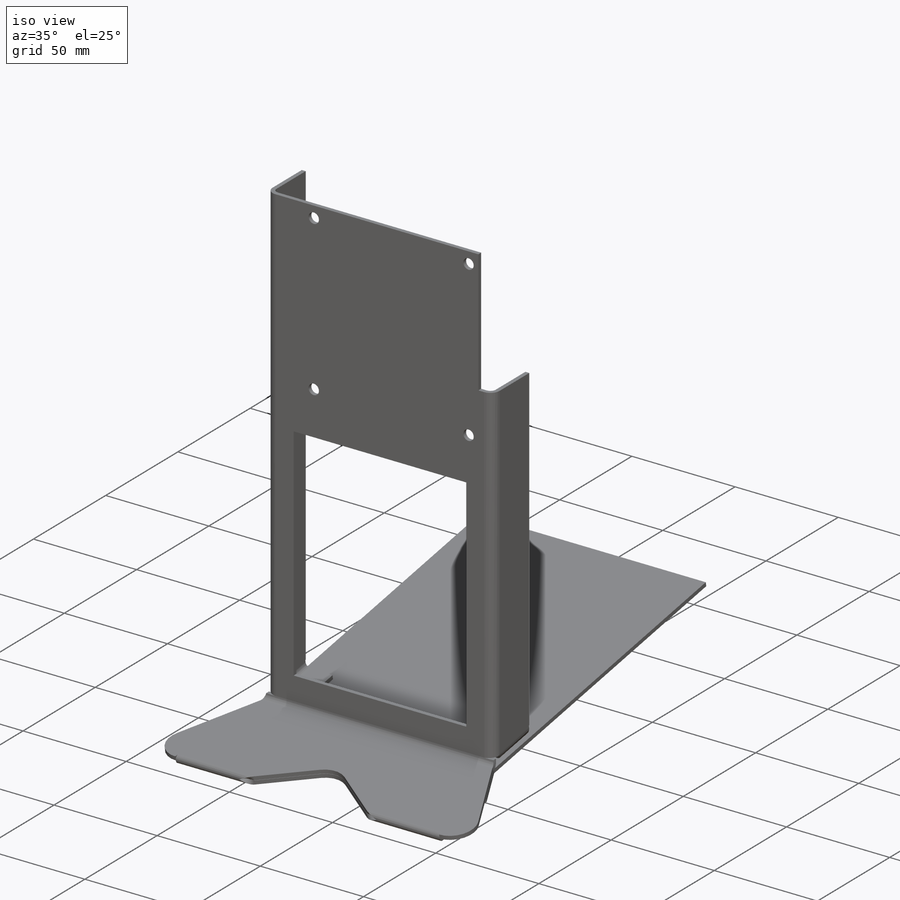
[diagram: iso view]
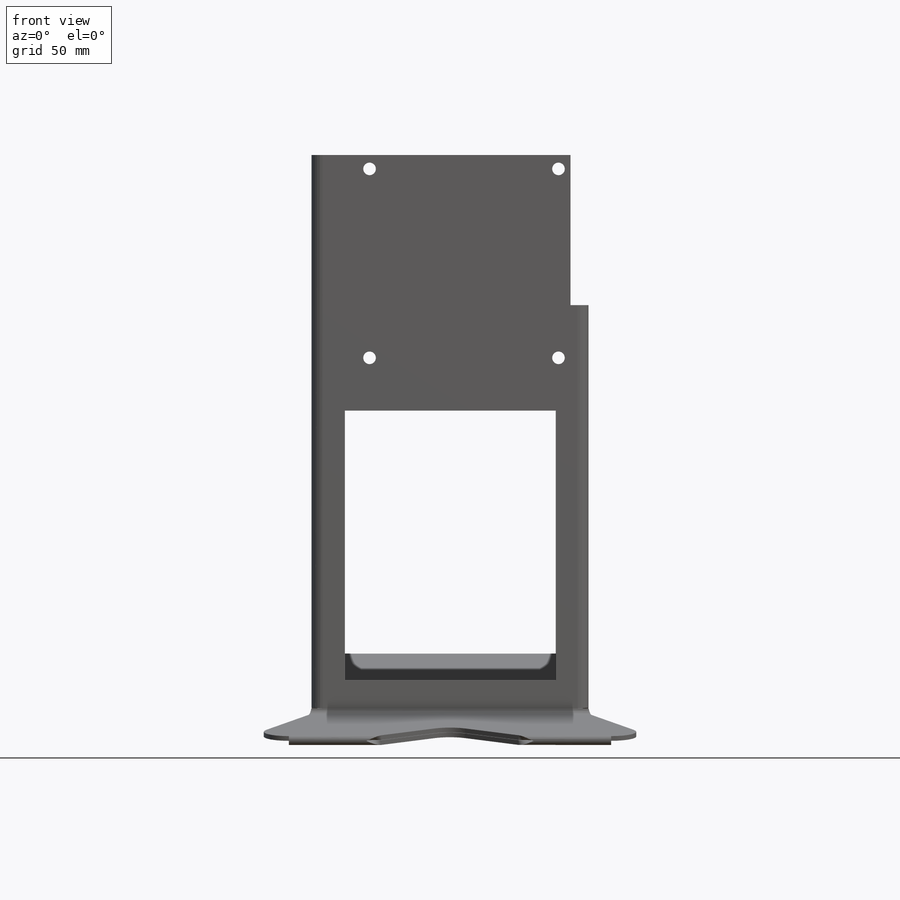
[diagram: front view]
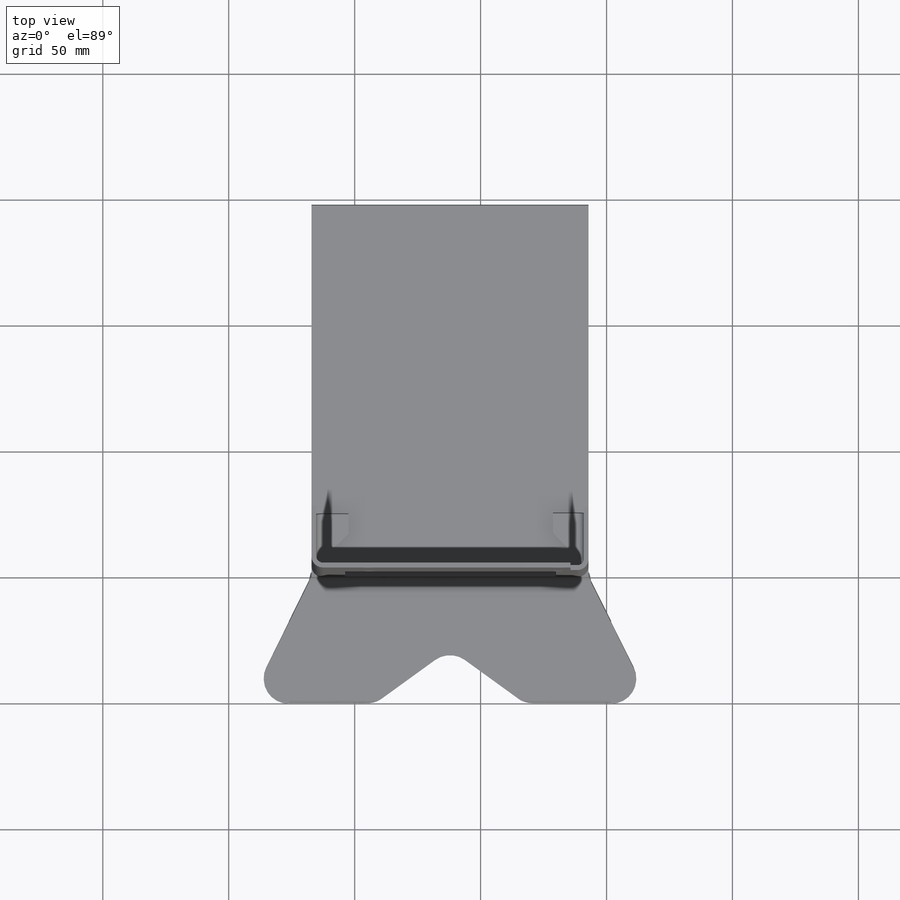
[diagram: top view]
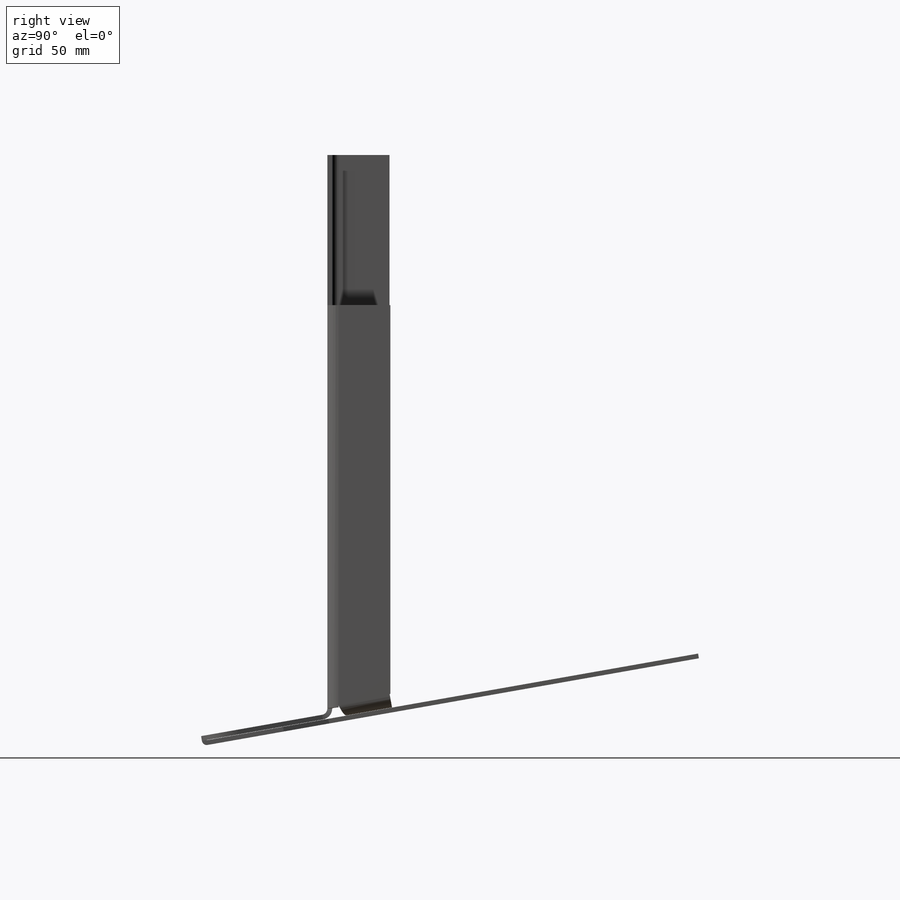
[diagram: right view]
SOLIDWORKS PART (.sldprt)
format: sldprt  version: not decoded by parser v0  size: 565,248 bytes
history: native  units: mm
features: sketch x32, sheet_metal_op x10, cut_extrude x5, material x1 + 9 further entries (+13 scaffold rows collapsed; 9 parser-record rows omitted)
feature tree (79):
  scaffold x13  (default folders/planes/origin — collapsed)
  material  "Material <not specified>"
  sketch  "Sketch1"  dims[c1.D1=110.0mm c2.D1=2.54mm c2.D2=0.5 c2.D3=0.0mm c2.D6=500.0mm]
  sheet_metal_op  "Base-Flange1"
  sketch  "Sketch2"
  cut_extrude  "Cut-Extrude1"  Depth=10mm
  sketch  "Sketch5"  dims[c1.D3=10.0mm c1.D7=10.0mm c1.D1=25.0mm c1.D2=25.0mm c2.D3=25.0mm c2.D1=25.0mm c2.D2=25.0mm c2.D4=20.0mm c2.D5=20.0mm c3.D4=30.0mm c3.D5=30.0mm c3.D6=35.0mm c3.D1=2.54mm c4.D4=80.0deg c4.D5=1.0 c4.D8=~0.94869mm c4.D9=~0.94869mm c4.D1=2.54mm c4.D2=500.0mm c4.D3=0.0mm c4.D6=10.0mm c4.D7=55.0mm]
  sketch  "Sketch15"  dims[c1.D1=0.05mm c1.D4=180.0deg c1.D5=2.0 c1.D8=~0.94869mm c1.D9=~0.94869mm c2.D1=0.05mm c2.D7=200.0mm c2.D8=0.1mm c2.D9=1.0mm]
  sketch  "Sketch16"  dims[D4=10.0mm D1=30.0mm D2=30.0mm D3=20.0mm]
  cut_extrude  "Cut-Extrude2"  Depth=10mm
  sketch  "Sketch17"
  cut_extrude  "Cut-Extrude3"  Depth=10mm
  sketch  "Sketch27"
  cut_extrude  "Cut-Extrude4"  Depth=10mm
  sketch  "Sketch28"  dims[D1=5.0mm]
  cut_extrude  "Cut-Extrude5"  Depth=10mm
  sketch  "Sketch33"
  sketch  "Sketch34"  dims[c1.D1=2.54mm c1.D4=90.0deg c1.D5=3.0 c1.D8=~0.94869mm c1.D9=~0.94869mm c2.D1=2.54mm c2.D4=90.0deg c2.D5=4.0 c2.D8=~0.94869mm c2.D9=~0.94869mm c3.D1=2.54mm c3.D2=500.0mm c3.D3=0.0mm c3.D6=10.0mm c3.D7=25.0mm c3.D8=1.0mm]
  sketch  "Sketch39"  dims[D1=8.0mm]
  sketch  "Sketch40"  dims[c1.D1=8.0mm c2.D1=2.54mm c2.D4=90.0deg c2.D5=5.0 c2.D8=~0.94869mm c2.D9=~0.94869mm c3.D1=2.54mm c3.D4=90.0deg c3.D5=6.0 c3.D8=~0.94869mm c3.D9=~0.94869mm c4.D1=2.54mm c4.D2=500.0mm c4.D3=0.0mm c4.D6=1.8mm c4.D7=15.0mm c4.D8=1.0mm]
  sketch  "Bend-Lines1"
  sketch  "Bounding-Box1"
  sheet_metal_op  "Sheet-Metal1"
  "Flat-Pattern1"
  sketch  "Bend-Lines2"
  sketch  "Bounding-Box2"
  parser-record x9  (decoder bookkeeping rows leaked as tree rows — omitted from the tree; the rows remain in map.json)
  sheet_metal_op  "Sheet-Metal2"
  "Flat-Pattern1"
  sketch  "Bend-Lines2"
  sketch  "Bounding-Box2"
  sheet_metal_op  "Sheet-Metal3"
  "Flat-Pattern1"
  sketch  "Bend-Lines2"
  sketch  "Bounding-Box2"
  sheet_metal_op  "Sheet-Metal4"
  "Flat-Pattern1"
  sketch  "Bend-Lines2"
  sketch  "Bounding-Box2"
  sheet_metal_op  "Sheet-Metal5"
  "Flat-Pattern1"
  sketch  "Bend-Lines2"
  sketch  "Bounding-Box2"
  sheet_metal_op  "Sheet-Metal7"
  "Flat-Pattern1"
  sketch  "Bend-Lines2"
  sketch  "Bounding-Box2"
  sheet_metal_op  "Sheet-Metal8"
  "Flat-Pattern1"
  sketch  "Bend-Lines2"
  sketch  "Bounding-Box2"
  sheet_metal_op  "Sheet-Metal9"
  "Flat-Pattern1"
  sketch  "Bend-Lines2"
  sketch  "Bounding-Box2"
  sheet_metal_op  "Sheet-Metal10"
  "Flat-Pattern1"
  sketch  "Bend-Lines2"
  sketch  "Bounding-Box2"
decode coverage: 13 of 47 modeling features carry decoded parameters; 9 rows unclassified (native names shown)
note: ~ marks probable driven/reference dimensions
note: suppression state not decoded; provenance and decode notes live in map.json
